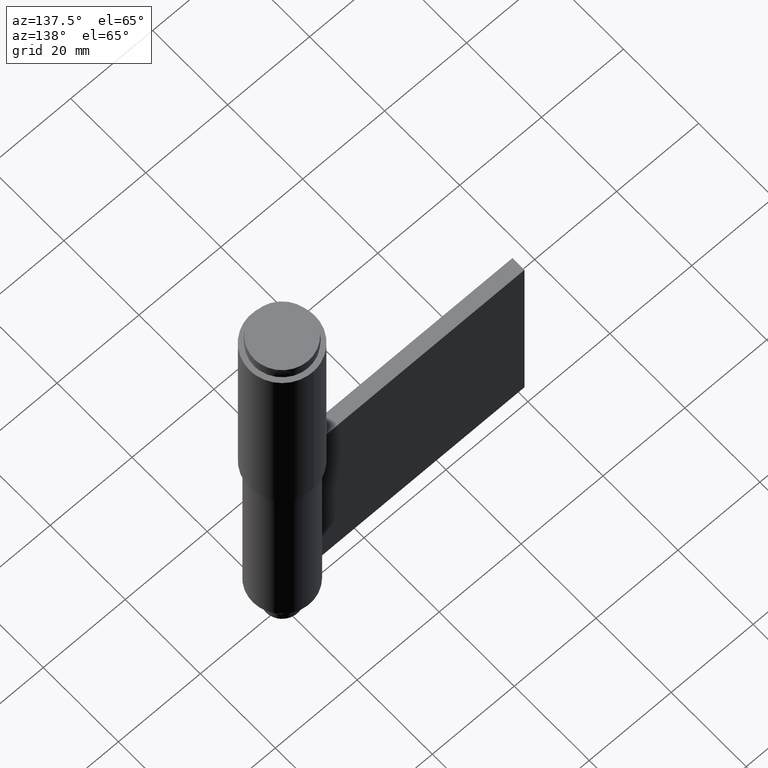
[diagram: clean part render]
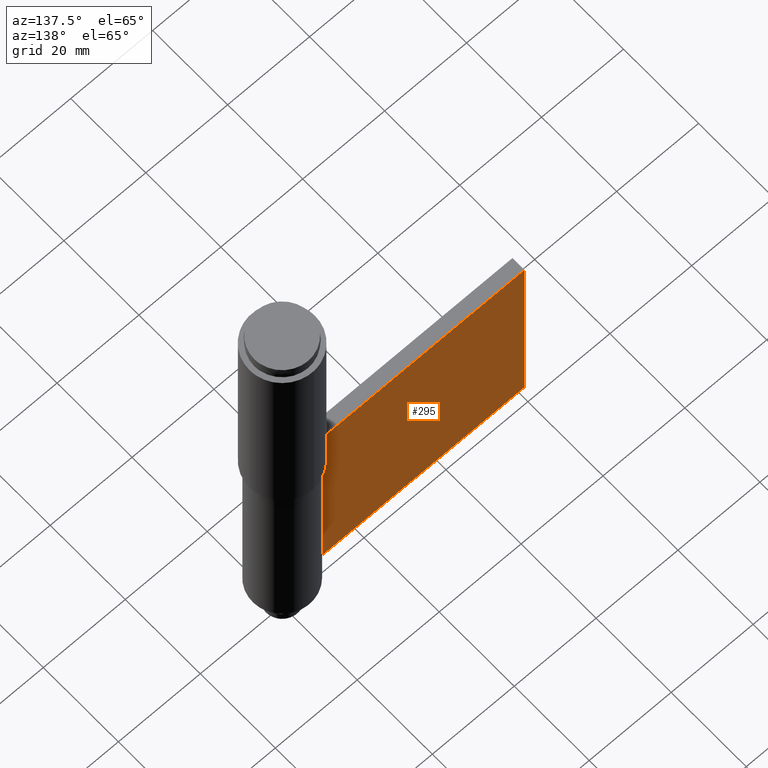
[diagram: same view with one face highlighted and labeled with its STEP entity id]
A machine part, auxiliary view. The second image highlights one B-rep face of the part: STEP entity #295.
In plain terms, the highlighted face is a freeform B-spline surface patch.
Its self-contained STEP definition (entity closure, byte-faithful):
#58=CARTESIAN_POINT('',(-57.699996999999897,1.599998000000000,10.0));
#59=VERTEX_POINT('',#58);
#65=CARTESIAN_POINT('',(-7.776886000000000,1.599998000000000,10.0));
#66=VERTEX_POINT('',#65);
#67=CARTESIAN_POINT('',(-7.776886000000000,1.599998000000000,10.0));
#68=CARTESIAN_POINT('',(-57.699996999999897,1.599998000000000,10.0));
#69=QUASI_UNIFORM_CURVE('',1,(#67,#68),.UNSPECIFIED.,.F.,.U.);
#70=EDGE_CURVE('',#66,#59,#69,.T.);
#230=CARTESIAN_POINT('',(-7.776886000000000,1.599998000000000,60.0));
#231=VERTEX_POINT('',#230);
#245=CARTESIAN_POINT('',(-57.699996999999897,1.599998000000000,60.0));
#246=VERTEX_POINT('',#245);
#247=CARTESIAN_POINT('',(-7.776886000000000,1.599998000000000,60.0));
#248=CARTESIAN_POINT('',(-57.699996999999897,1.599998000000000,60.0));
#249=QUASI_UNIFORM_CURVE('',1,(#247,#248),.UNSPECIFIED.,.F.,.U.);
#250=EDGE_CURVE('',#231,#246,#249,.T.);
#272=CARTESIAN_POINT('',(-57.699996999999897,1.599998000000000,60.0));
#273=CARTESIAN_POINT('',(-57.699996999999897,1.599998000000000,10.0));
#274=QUASI_UNIFORM_CURVE('',1,(#272,#273),.UNSPECIFIED.,.F.,.U.);
#275=EDGE_CURVE('',#246,#59,#274,.T.);
#280=CARTESIAN_POINT('',(-60.193656297689223,1.599998000000000,62.497499903090301));
#281=CARTESIAN_POINT('',(-60.193656297689223,1.599998000000000,7.502498755805198));
#282=CARTESIAN_POINT('',(-5.283225363268498,1.599998000000000,62.497499903090301));
#283=CARTESIAN_POINT('',(-5.283225363268498,1.599998000000000,7.502498755805198));
#284=B_SPLINE_SURFACE_WITH_KNOTS('',1,1,((#280,#282),(#281,#283)),.UNSPECIFIED.,.F.,.F.,.U.,(2,2),(2,2),(0.0,54.995001147285102),(0.0,54.910430934420717),.UNSPECIFIED.);
#285=ORIENTED_EDGE('',*,*,#70,.T.);
#286=ORIENTED_EDGE('',*,*,#275,.F.);
#287=ORIENTED_EDGE('',*,*,#250,.F.);
#288=CARTESIAN_POINT('',(-7.776886000000000,1.599998000000000,60.0));
#289=CARTESIAN_POINT('',(-7.776886000000000,1.599998000000000,10.0));
#290=QUASI_UNIFORM_CURVE('',1,(#288,#289),.UNSPECIFIED.,.F.,.U.);
#291=EDGE_CURVE('',#231,#66,#290,.T.);
#292=ORIENTED_EDGE('',*,*,#291,.T.);
#293=EDGE_LOOP('',(#285,#286,#287,#292));
#294=FACE_OUTER_BOUND('',#293,.T.);
#295=ADVANCED_FACE('',(#294),#284,.F.);